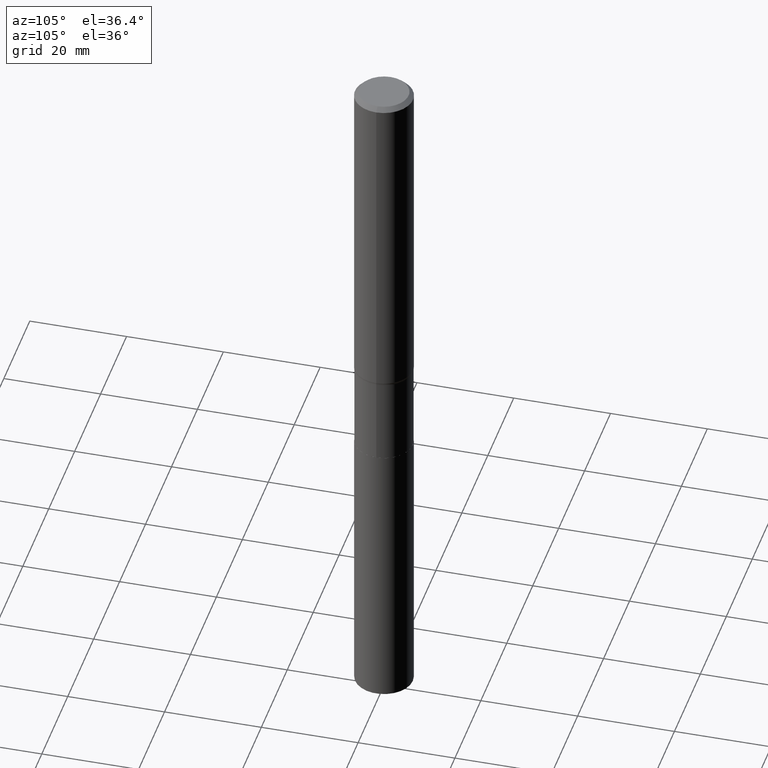
[diagram: clean part render]
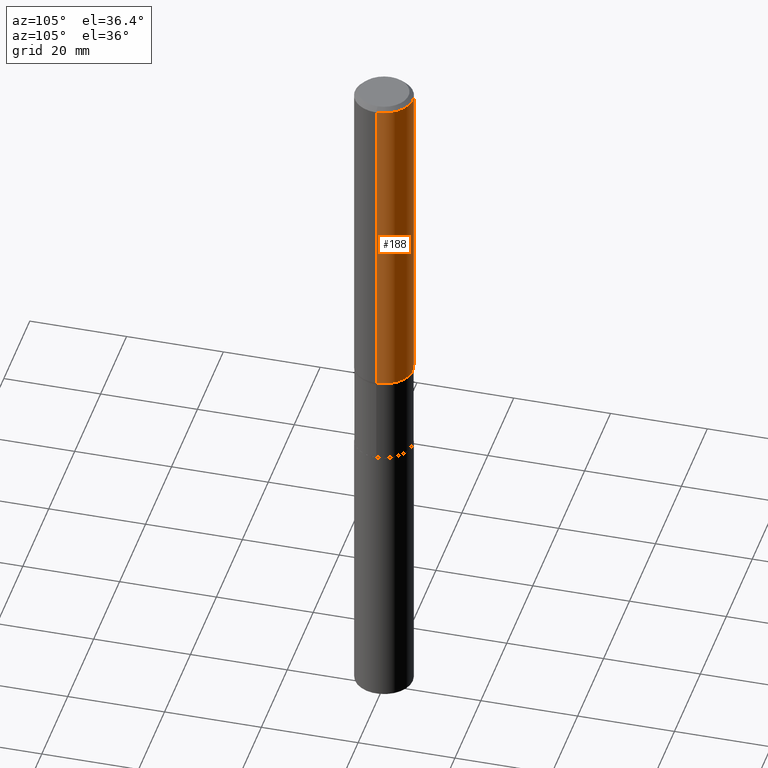
[diagram: same view with one face highlighted and labeled with its STEP entity id]
A machine part, auxiliary view. The second image highlights one B-rep face of the part: STEP entity #188.
In plain terms, the highlighted cylindrical surface (edge-blend (fillet) strip) has radius 5.9995 mm, axis along (-0, 0, 1).
Its self-contained STEP definition (entity closure, byte-faithful):
#21 = CARTESIAN_POINT ( 'NONE',  ( -0.2362000000000003264, -7.673718693175901763E-15, -2.678525166667487856 ) ) ;
#39 = CARTESIAN_POINT ( 'NONE',  ( 0.2362000000000002153, -1.649375784469497708E-15, 1.151752954443001069E-29 ) ) ;
#74 = ORIENTED_EDGE ( 'NONE', *, *, #79, .T. ) ;
#79 = EDGE_CURVE ( 'NONE', #312, #183, #234, .T. ) ;
#112 = LINE ( 'NONE', #39, #358 ) ;
#117 = DIRECTION ( 'NONE',  ( -2.445468806185136597E-29, 3.491481338843145583E-15, 1.000000000000000000 ) ) ;
#149 = AXIS2_PLACEMENT_3D ( 'NONE', #322, #117, #257 ) ;
#163 = ORIENTED_EDGE ( 'NONE', *, *, #239, .T. ) ;
#170 = DIRECTION ( 'NONE',  ( -2.445468806185136877E-29, 3.491481338843145188E-15, 1.000000000000000000 ) ) ;
#183 = VERTEX_POINT ( 'NONE', #407 ) ;
#184 = VECTOR ( 'NONE', #170, 39.37007874015748143 ) ;
#188 = ADVANCED_FACE ( 'NONE', ( #219 ), #437, .T. ) ;
#190 = DIRECTION ( 'NONE',  ( -2.445468806185136877E-29, 3.491481338843145188E-15, 1.000000000000000000 ) ) ;
#200 = CARTESIAN_POINT ( 'NONE',  ( 0.2362000000000000210, -1.773078968304710106E-15, -0.03543000000000025296 ) ) ;
#207 = ORIENTED_EDGE ( 'NONE', *, *, #361, .F. ) ;
#219 = FACE_OUTER_BOUND ( 'NONE', #448, .T. ) ;
#223 = CARTESIAN_POINT ( 'NONE',  ( 0.000000000000000000, 0.000000000000000000, 0.000000000000000000 ) ) ;
#231 = DIRECTION ( 'NONE',  ( 1.000000000000000000, -6.982962677686267499E-15, 0.000000000000000000 ) ) ;
#234 = LINE ( 'NONE', #419, #184 ) ;
#239 = EDGE_CURVE ( 'NONE', #359, #312, #241, .T. ) ;
#240 = ORIENTED_EDGE ( 'NONE', *, *, #242, .F. ) ;
#241 = CIRCLE ( 'NONE', #149, 0.2362000000000003264 ) ;
#242 = EDGE_CURVE ( 'NONE', #359, #276, #112, .T. ) ;
#257 = DIRECTION ( 'NONE',  ( 1.000000000000000000, -6.982962677686263555E-15, 0.000000000000000000 ) ) ;
#276 = VERTEX_POINT ( 'NONE', #200 ) ;
#292 = AXIS2_PLACEMENT_3D ( 'NONE', #295, #447, #231 ) ;
#295 = CARTESIAN_POINT ( 'NONE',  ( 8.664295980314000494E-31, -1.237031838352135311E-16, -0.03543000000000025296 ) ) ;
#312 = VERTEX_POINT ( 'NONE', #21 ) ;
#322 = CARTESIAN_POINT ( 'NONE',  ( 6.550249741667184753E-29, -9.352020635041259735E-15, -2.678525166667487856 ) ) ;
#357 = DIRECTION ( 'NONE',  ( -2.445468806185136597E-29, 3.491481338843145583E-15, 1.000000000000000000 ) ) ;
#358 = VECTOR ( 'NONE', #190, 39.37007874015748143 ) ;
#359 = VERTEX_POINT ( 'NONE', #409 ) ;
#361 = EDGE_CURVE ( 'NONE', #276, #183, #386, .T. ) ;
#386 = CIRCLE ( 'NONE', #292, 0.2362000000000000210 ) ;
#396 = DIRECTION ( 'NONE',  ( 1.000000000000000000, -6.982962677686266711E-15, 4.876176775795935793E-29 ) ) ;
#400 = AXIS2_PLACEMENT_3D ( 'NONE', #223, #357, #396 ) ;
#407 = CARTESIAN_POINT ( 'NONE',  ( -0.2362000000000000210, -3.059559967572877305E-15, -0.03543000000000025296 ) ) ;
#409 = CARTESIAN_POINT ( 'NONE',  ( 0.2362000000000003264, -1.100139641951075784E-14, -2.678525166667487856 ) ) ;
#419 = CARTESIAN_POINT ( 'NONE',  ( -0.2362000000000002153, 1.678301941865358169E-15, -1.161852468318209878E-29 ) ) ;
#437 = CYLINDRICAL_SURFACE ( 'NONE', #400, 0.2362000000000002153 ) ;
#447 = DIRECTION ( 'NONE',  ( -2.445468806185136597E-29, 3.491481338843145583E-15, 1.000000000000000000 ) ) ;
#448 = EDGE_LOOP ( 'NONE', ( #163, #74, #207, #240 ) ) ;